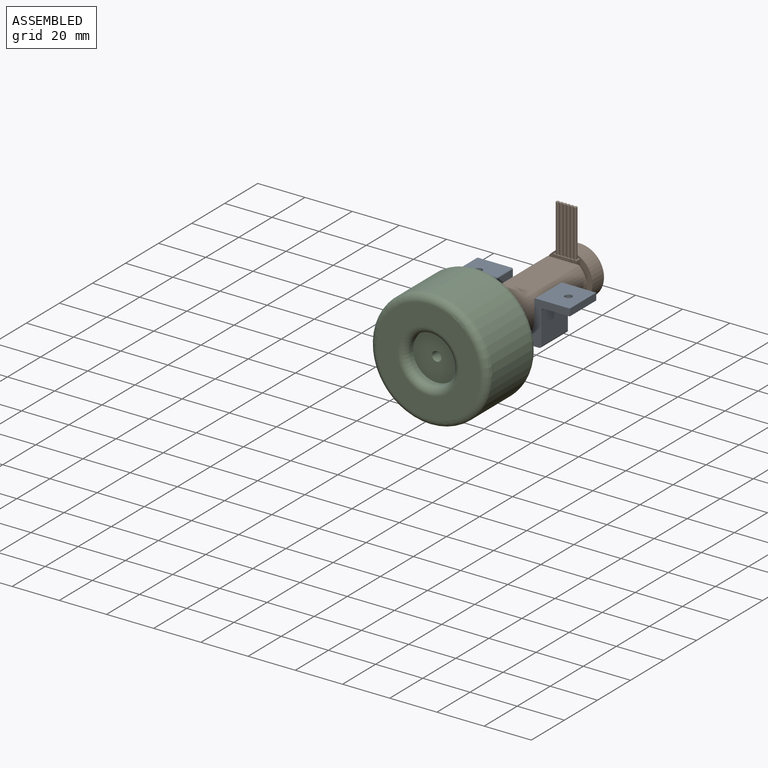
[diagram: assembled view]
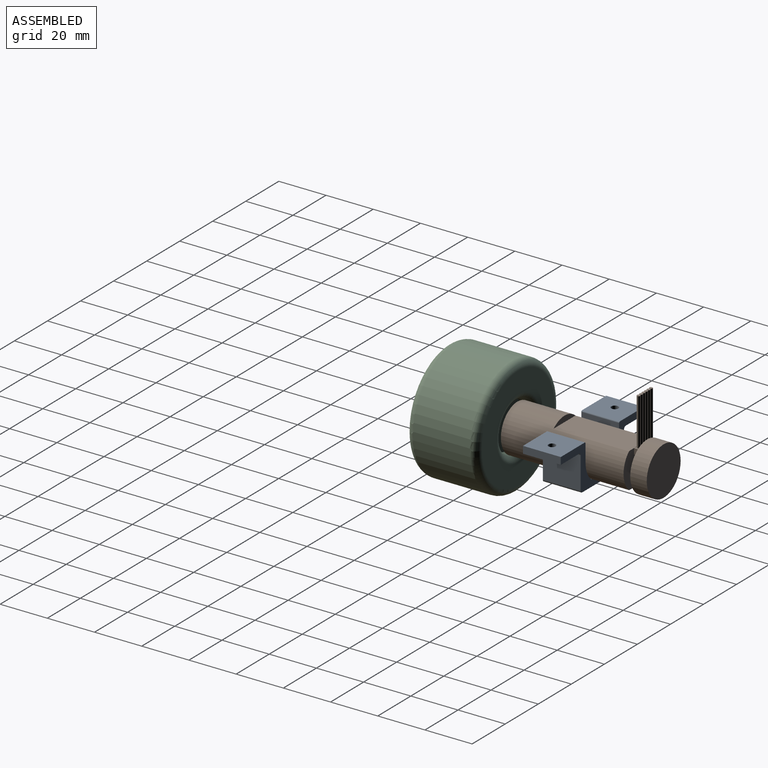
[diagram: assembled view, second angle]
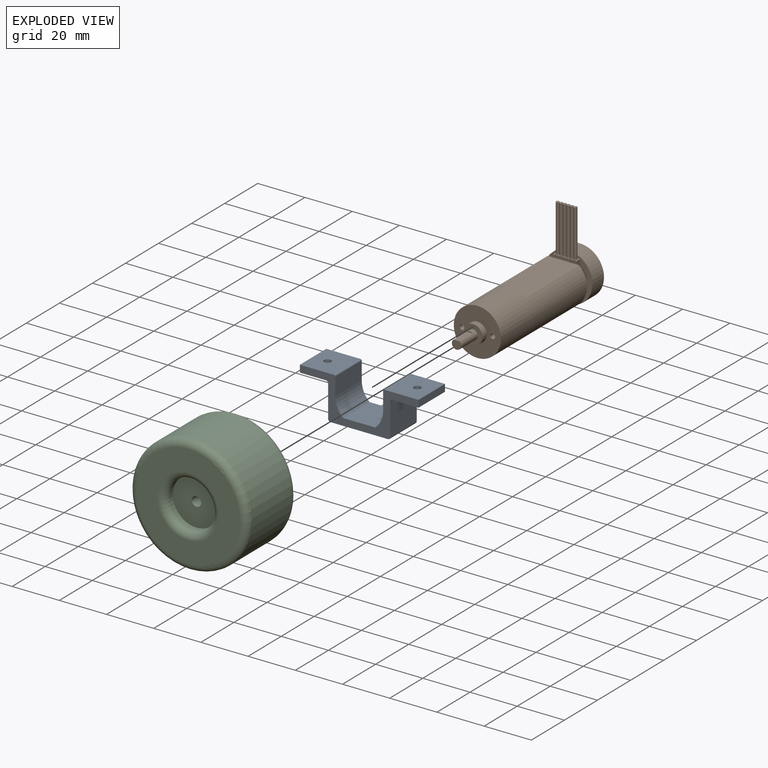
[diagram: exploded view]
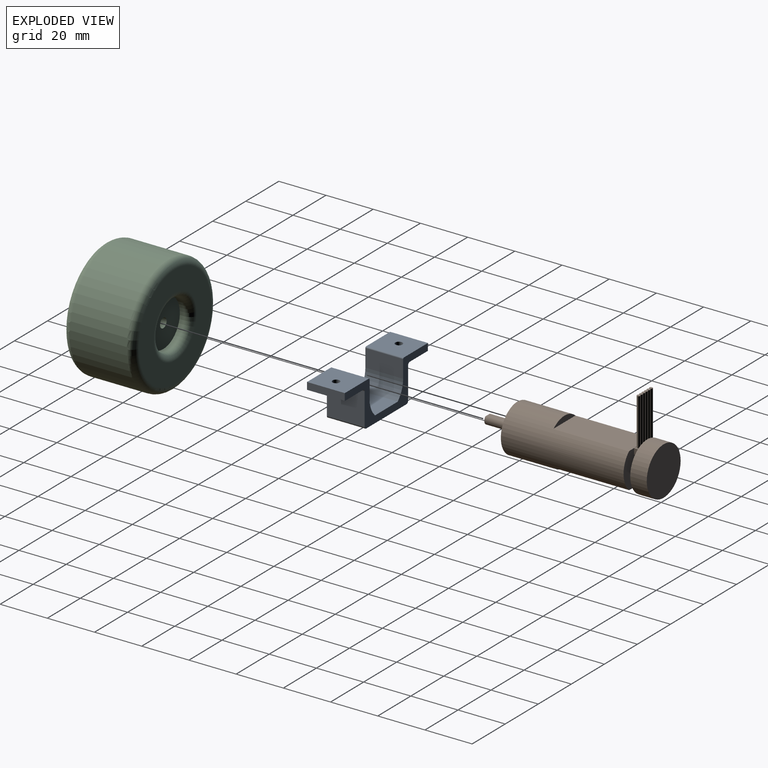
[diagram: exploded view, second angle]
ASSEMBLY  parts=3 mates=5
PART A: 40 faces, bbox 50.3x16x18.5 mm
  f0: plane 16x11mm, normal (0,0,-1), area 148.8mm2, adj f19,f20,f22,f23,f32,f33,f34,f35
  f1: cylinder r=1.5mm len=3mm, axis (0,0,1), area 16mm2, adj f18,f31
  f2: cylinder r=1.5mm len=3mm, axis (0,0,1), area 16mm2, adj f10,f30
  f3: cylinder r=1mm len=16mm, axis (0,1,0), area 25.1mm2, adj f4,f21,f22,f23
  f4: plane 24.3x16mm, normal (0,0,-1), area 388.8mm2, adj f3,f5,f22,f23
  f5: cylinder r=1mm len=16mm, axis (0,1,0), area 25.1mm2, adj f4,f6,f22,f23
  f6: plane 16x13.5mm, normal (1,0,0), area 216mm2, adj f5,f7,f22,f23
  f7: cylinder r=1mm len=16mm, axis (0,1,0), area 25.1mm2, adj f6,f8,f22,f23
  f8: plane 16x11mm, normal (0,0,-1), area 148.8mm2, adj f7,f9,f22,f23,f24,f25,f26,f27
  f9: plane 16x3mm, normal (1,0,0), area 48mm2, adj f8,f10,f22,f23
  f10: plane 16x14.5mm, normal (0,0,1), area 224.9mm2, adj f2,f9,f22,f23,f38
  f11: plane 16x7.5mm, normal (-1,0,0), area 120mm2, adj f12,f22,f23,f38
  f12: cylinder r=10.15mm len=16mm, axis (0,1,0), area 133.8mm2, adj f11,f13,f22,f23
  f13: cylinder r=0.2mm len=16mm, axis (0,1,0), area 2.4mm2, adj f12,f14,f22,f23
  f14: plane 16x13.52mm, normal (0,0,1), area 216.4mm2, adj f13,f15,f22,f23
  f15: cylinder r=0.2mm len=16mm, axis (0,1,0), area 2.4mm2, adj f14,f16,f22,f23
  f16: cylinder r=10.15mm len=16mm, axis (0,1,0), area 133.8mm2, adj f15,f17,f22,f23
  f17: plane 16x7.5mm, normal (1,0,0), area 120mm2, adj f16,f22,f23,f39
  f18: plane 16x14.5mm, normal (0,0,1), area 224.9mm2, adj f1,f19,f22,f23,f39
  f19: plane 16x3mm, normal (-1,0,0), area 48mm2, adj f0,f18,f22,f23
  f20: cylinder r=1mm len=16mm, axis (0,1,0), area 25.1mm2, adj f0,f21,f22,f23
  f21: plane 16x13.5mm, normal (-1,0,0), area 216mm2, adj f3,f20,f22,f23
  f22: plane 50.3x18.5mm, normal (0,-1,0), area 259.1mm2, adj f0,f3,f4,f5,f6,f7,f8,f9
  f23: plane 50.3x18.5mm, normal (0,1,0), area 259.1mm2, adj f0,f3,f4,f5,f6,f7,f8,f9
  f24: plane 3.23x1.3mm, normal (-1,0,0), area 4.2mm2, adj f8,f25,f29,f30
  f25: plane 2.8x1.62mm, normal (-0.5,0.87,0), area 4.2mm2, adj f8,f24,f26,f30
  f26: plane 2.8x1.62mm, normal (0.5,0.87,0), area 4.2mm2, adj f8,f25,f27,f30
  f27: plane 3.23x1.3mm, normal (1,0,0), area 4.2mm2, adj f8,f26,f28,f30
  f28: plane 2.8x1.62mm, normal (0.5,-0.87,0), area 4.2mm2, adj f8,f27,f29,f30
  f29: plane 2.8x1.62mm, normal (-0.5,-0.87,0), area 4.2mm2, adj f8,f24,f28,f30
  f30: plane 6.47x5.6mm, normal (0,0,-1), area 20.1mm2, adj f2,f24,f25,f26,f27,f28,f29
  f31: plane 6.47x5.6mm, normal (0,0,-1), area 20.1mm2, adj f1,f32,f33,f34,f35,f36,f37
  f32: plane 2.8x1.62mm, normal (-0.5,0.87,0), area 4.2mm2, adj f0,f31,f33,f37
  f33: plane 2.8x1.62mm, normal (0.5,0.87,0), area 4.2mm2, adj f0,f31,f32,f34
  f34: plane 3.23x1.3mm, normal (1,0,0), area 4.2mm2, adj f0,f31,f33,f35
  f35: plane 2.8x1.62mm, normal (0.5,-0.87,0), area 4.2mm2, adj f0,f31,f34,f36
  f36: plane 2.8x1.62mm, normal (-0.5,-0.87,0), area 4.2mm2, adj f0,f31,f35,f37
  f37: plane 3.23x1.3mm, normal (-1,0,0), area 4.2mm2, adj f0,f31,f32,f36
  f38: cylinder r=0.5mm len=16mm, axis (0,1,0), area 12.6mm2, adj f10,f11,f22,f23
  f39: cylinder r=0.5mm len=16mm, axis (0,-1,0), area 12.6mm2, adj f17,f18,f22,f23
PART B: 42 faces, bbox 20.5x74.6x38.5 mm
  f0: plane 13.52x2.63mm, normal (0,1,0), area 22.7mm2, adj f2,f14,f17,f18
  f1: plane 20x20mm, normal (0,-1,0), area 257.6mm2, adj f2,f4,f10,f12
  f2: cylinder r=10mm len=52mm, axis (0,1,0), area 2317mm2, adj f0,f1,f3,f16,f17,f18,f19,f20
  f3: plane 13.52x2.63mm, normal (0,1,0), area 22.7mm2, adj f2,f15,f19,f20
  f4: cylinder r=4mm len=8mm, axis (0,1,0), area 65.3mm2, adj f1,f5
  f5: plane 8x8mm, normal (0,-1,0), area 37.7mm2, adj f4,f6
  f6: cylinder r=2mm len=10mm, axis (0,1,0), area 102.5mm2, adj f5,f7,f8,f9
  f7: plane 4x3.5mm, normal (0,-1,0), area 11.7mm2, adj f6,f8
  f8: plane 8x2.65mm, normal (0,0,1), area 21.2mm2, adj f6,f7,f9
  f9: plane 2.65x0.5mm, normal (0,-1,0), area 0.9mm2, adj f6,f8
  f10: cylinder r=1mm len=5mm, axis (0,-1,0), area 31.4mm2, adj f1,f11
  f11: plane 2x2mm, normal (0,-1,0), area 3.1mm2, adj f10
  f12: cylinder r=1mm len=5mm, axis (0,-1,0), area 31.4mm2, adj f1,f13
  f13: plane 2x2mm, normal (0,-1,0), area 3.1mm2, adj f12
  f14: plane 32x12.85mm, normal (0,0,-1), area 411mm2, adj f0,f16,f17,f18
  f15: plane 32x12.85mm, normal (0,0,1), area 411mm2, adj f3,f16,f19,f20
  f16: plane 20x15mm, normal (0,1,0), area 265.7mm2, adj f2,f14,f15,f17,f18,f19,f20,f21
  f17: cylinder r=0.5mm len=32mm, axis (0,1,0), area 11.9mm2, adj f0,f2,f14,f16
  f18: cylinder r=0.5mm len=32mm, axis (0,1,0), area 11.9mm2, adj f0,f2,f14,f16
  f19: cylinder r=0.5mm len=32mm, axis (0,1,0), area 11.9mm2, adj f2,f3,f15,f16
  f20: cylinder r=0.5mm len=32mm, axis (0,1,0), area 11.9mm2, adj f2,f3,f15,f16
  f21: cylinder r=1mm len=3mm, axis (0,-1,0), area 18.8mm2, adj f16,f24
  f22: cylinder r=10.25mm len=20.5mm, axis (0,-1,0), area 450.8mm2, adj f23,f24
  f23: plane 20.5x20.5mm, normal (0,1,0), area 330.1mm2, adj f22
  f24: plane 20.5x20.5mm, normal (0,-1,0), area 301.9mm2, adj f21,f22,f25,f26,f27,f28
  f25: plane 10x2mm, normal (0,0,-1), area 20mm2, adj f24,f26,f28,f29
  f26: plane 2.5x2mm, normal (1,0,0), area 5mm2, adj f24,f25,f27,f29
  f27: plane 10x2mm, normal (0,0,1), area 10.8mm2, adj f24,f26,f28,f29,f30,f32,f34,f36
  f28: plane 2.5x2mm, normal (-1,0,0), area 5mm2, adj f24,f25,f27,f29
  f29: plane 10x2.5mm, normal (0,-1,0), area 25mm2, adj f25,f26,f27,f28
  f30: cylinder r=0.7mm len=20mm, axis (0,0,-1), area 88mm2, adj f27,f31
  f31: plane 1.4x1.4mm, normal (0,0,1), area 1.5mm2, adj f30
  f32: cylinder r=0.7mm len=20mm, axis (0,0,-1), area 88mm2, adj f27,f33
  f33: plane 1.4x1.4mm, normal (0,0,1), area 1.5mm2, adj f32
  f34: cylinder r=0.7mm len=20mm, axis (0,0,-1), area 88mm2, adj f27,f35
  f35: plane 1.4x1.4mm, normal (0,0,1), area 1.5mm2, adj f34
  f36: cylinder r=0.7mm len=20mm, axis (0,0,-1), area 88mm2, adj f27,f37
  f37: plane 1.4x1.4mm, normal (0,0,1), area 1.5mm2, adj f36
  f38: cylinder r=0.7mm len=20mm, axis (0,0,-1), area 88mm2, adj f27,f39
  f39: plane 1.4x1.4mm, normal (0,0,1), area 1.5mm2, adj f38
  f40: cylinder r=0.7mm len=20mm, axis (0,0,-1), area 88mm2, adj f27,f41
  f41: plane 1.4x1.4mm, normal (0,0,1), area 1.5mm2, adj f40
PART C: 12 faces, bbox 54.1x30x54.1 mm
  f0: cylinder r=10mm len=20mm, axis (0,1,0), area 125.7mm2, adj f7,f8
  f1: cylinder r=10mm len=20mm, axis (0,1,0), area 125.7mm2, adj f6,f10
  f2: cylinder r=25mm len=50mm, axis (0,1,0), area 3769.9mm2, adj f9,f11
  f3: plane 44x44mm, normal (0,-1,0), area 989.6mm2, adj f10,f11
  f4: plane 44x44mm, normal (0,1,0), area 989.6mm2, adj f8,f9
  f5: cylinder r=2mm len=20mm, axis (0,1,0), area 251.3mm2, adj f6,f7
  f6: plane 20x20mm, normal (0,-1,0), area 301.6mm2, adj f1,f5
  f7: plane 20x20mm, normal (0,1,0), area 301.6mm2, adj f0,f5
  f8: torus R=13mm, axis (0,-1,0), area 328.4mm2, adj f0,f4
  f9: torus R=22mm, axis (0,-1,0), area 707.9mm2, adj f2,f4
  f10: torus R=13mm, axis (0,-1,0), area 328.4mm2, adj f1,f3
  f11: torus R=22mm, axis (0,-1,0), area 707.9mm2, adj f2,f3
PLACE A t=(-14.69,12.84,38.98)mm
PLACE B t=(-14.69,-3.16,49.48)mm
PLACE C t=(-14.69,-37.76,49.48)mm
MATE cylindrical A.f12 <-> B.f2  axis (0,1,0) through (-14.69,4.84,49.48)mm
MATE cylindrical C.f5 <-> B.f4  axis (0,-1,0) through (-14.69,-47.76,49.48)mm
MATE planar C.f0 <-> B.f9  axis (0,1,0) through (-14.69,-27.76,49.48)mm
MATE planar B.f14 <-> A.f14  axis (0,0,-1) through (-14.69,12.84,41.98)mm
MATE planar B.f0 <-> A.f22  axis (0,1,0) through (-14.69,-3.16,40.97)mm
